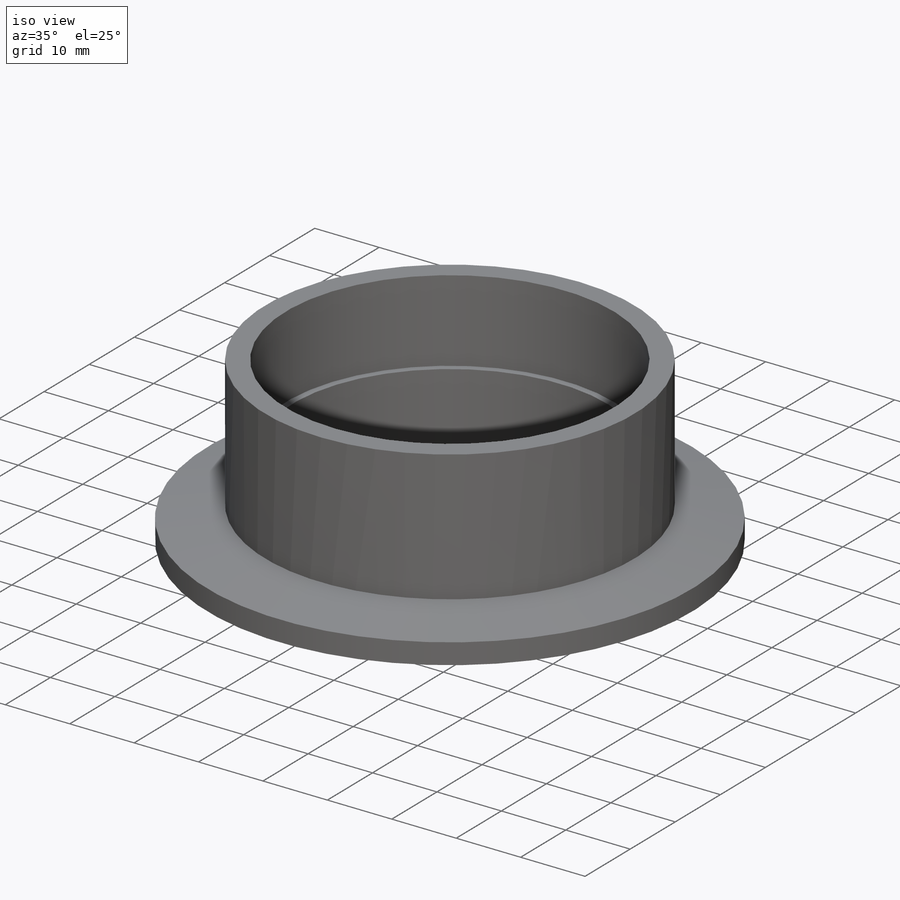
[diagram: iso view]
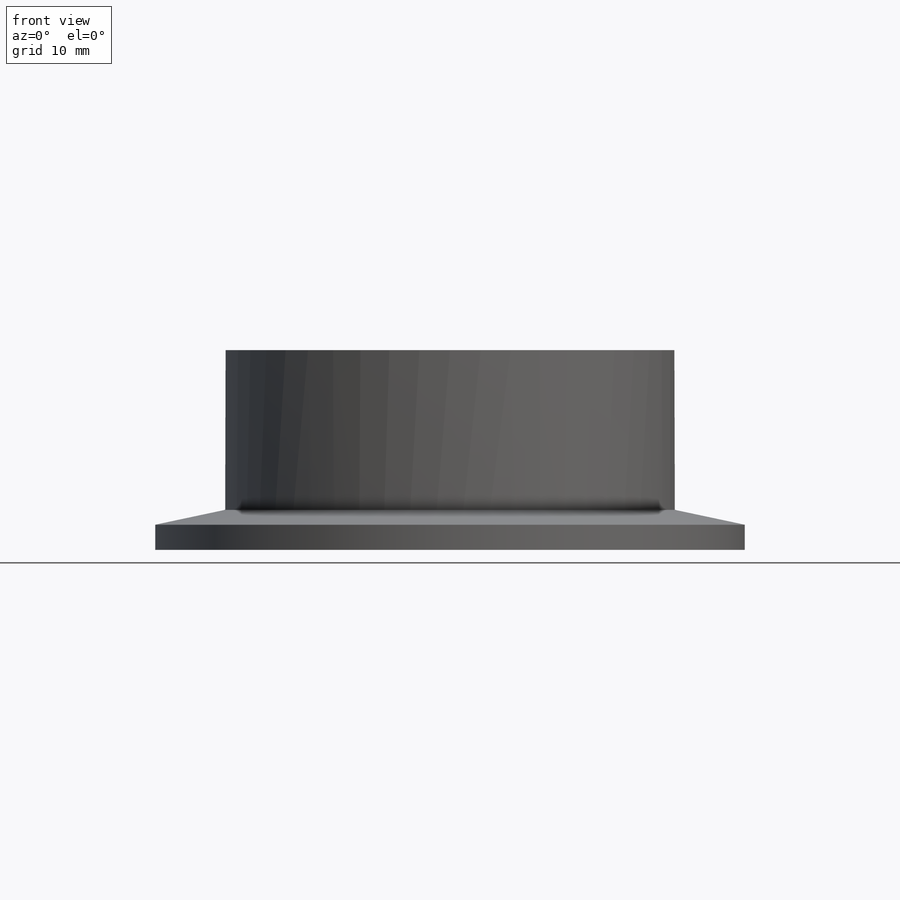
[diagram: front view]
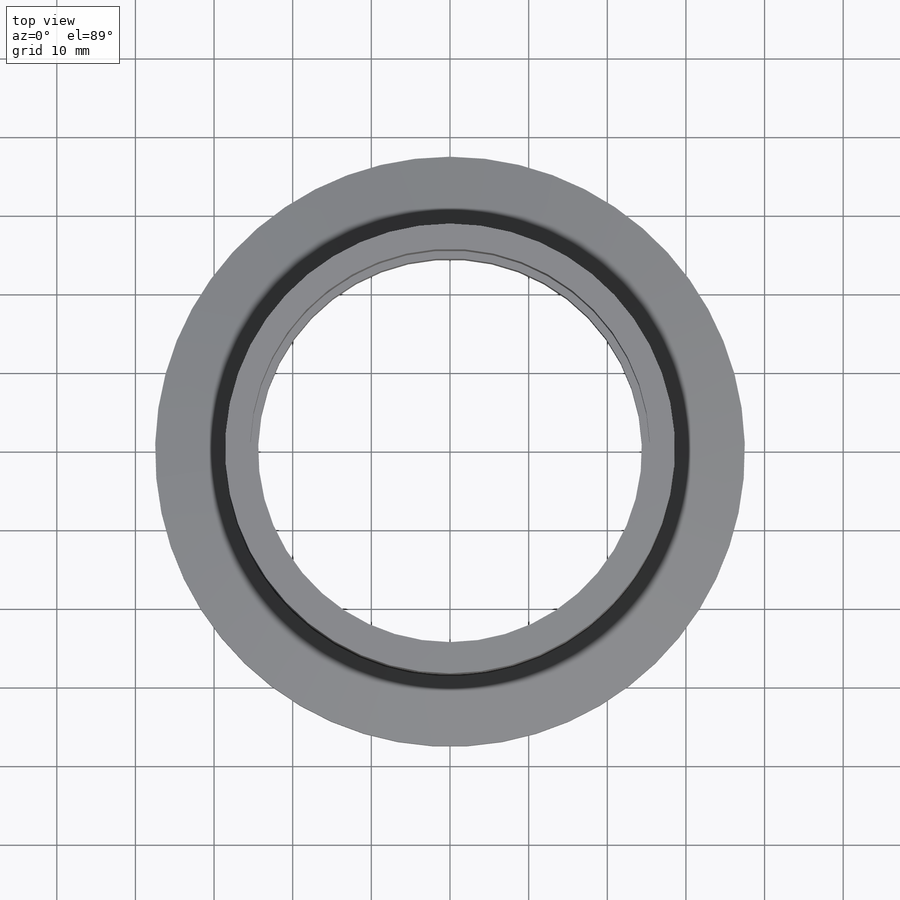
[diagram: top view]
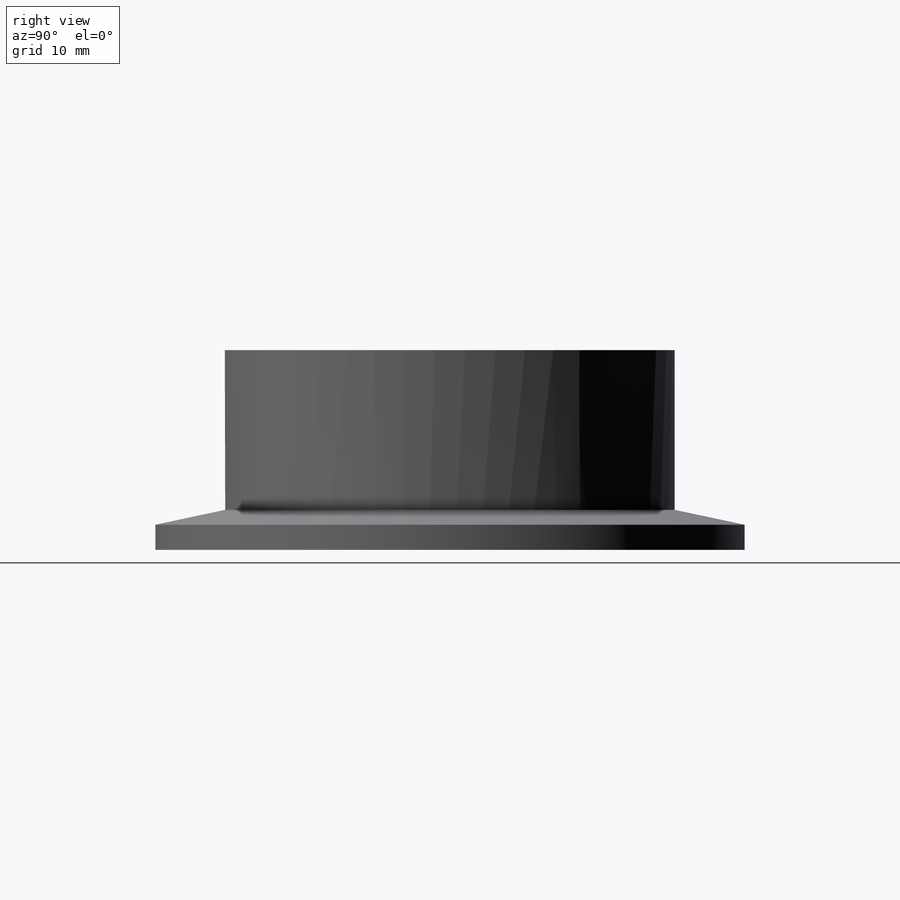
[diagram: right view]
SOLIDWORKS PART (.sldprt)
format: sldprt  version: not decoded by parser v0  size: 294,400 bytes
history: native  units: mm
features: sketch x4, cut_extrude x2, material x1, revolve x1, extrude x1, plane x1 (+14 scaffold rows collapsed)
feature tree (24):
  scaffold x14  (default folders/planes/origin — collapsed)
  material  "Brass"
  sketch  "Sketch1"  dims[c1.D1=21.95mm c1.Flange ID=52.2mm c1.D3=12.8mm c1.Flange OD=75.0mm c1.D5=3.2mm c1.D6=3.5mm c1.Flange Height=5.1mm c1.Flange to Center=60.7mm c1.D9=2.5mm c1.Tube OD=51.0mm c2.D1=2.0mm c3.D1=78.0deg c3.D2=~57.122406mm]
  revolve  "Flange"  Angle=360deg
  sketch  "Sketch5"  dims[D1=57.2mm]
  extrude  "Stub"  Depth=25.4mm
  sketch  "Sketch3"  dims[Socket Dia=50.8mm]
  cut_extrude  "Socket"  Depth=12.7mm
  sketch  "Sketch7"  dims[Bore Diameter=~4.984785mm D1=1.0mm]
  cut_extrude  "Bore"  [1 undecoded]
  plane  "Plane1"  Offset=1.905mm
decode coverage: 7 of 8 modeling features carry decoded parameters
note: ~ marks probable driven/reference dimensions
note: 1 parameter value undecoded
note: suppression state not decoded; provenance and decode notes live in map.json
